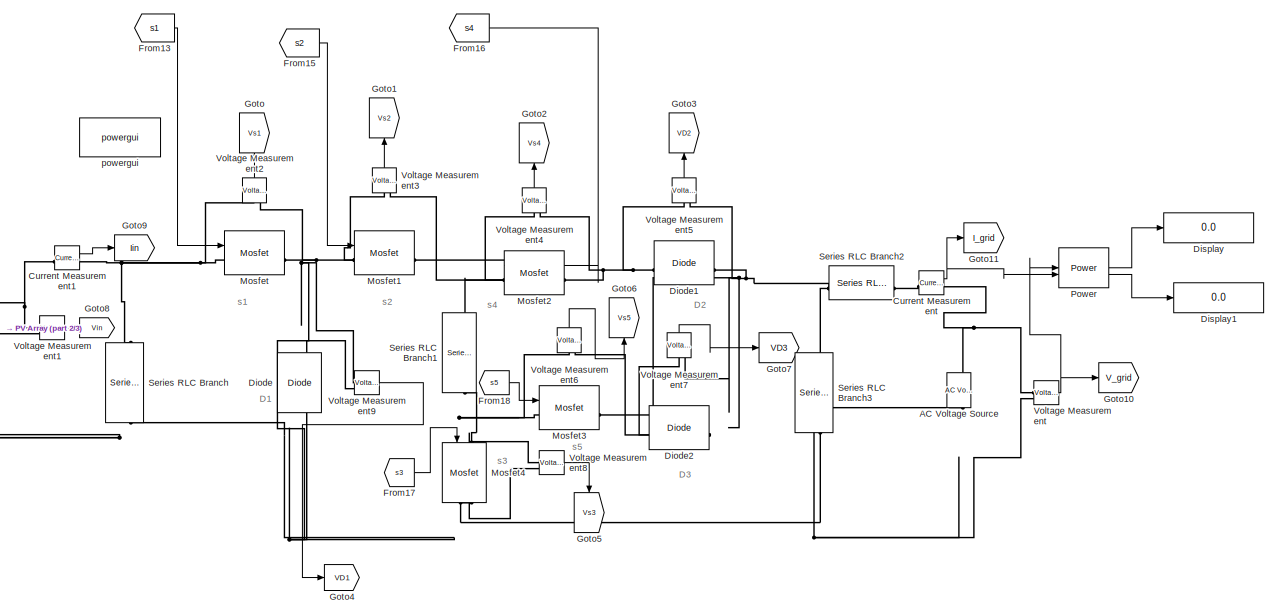
[diagram: root canvas - part 1/3, top center region]
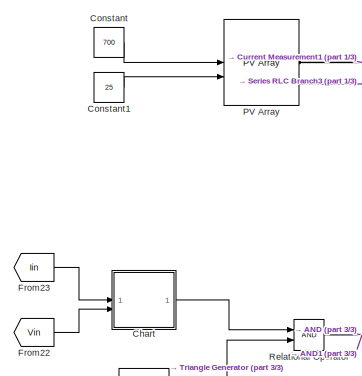
[diagram: root canvas - part 2/3, middle left region]
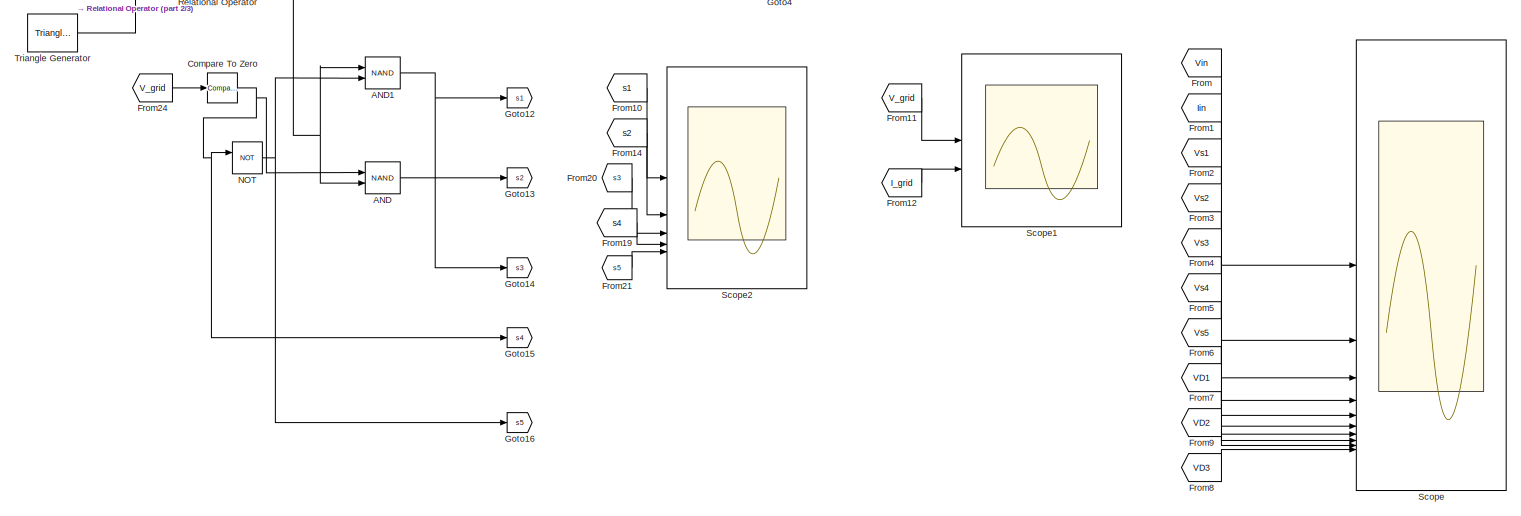
[diagram: root canvas - part 3/3, full width, bottom band]
MODEL slx_df8b6bdd78d4
KIND model
CONFIG AbsTol = auto
CONFIG EnableMultiTasking = off
CONFIG FixedStep = auto
CONFIG MaxStep = auto
CONFIG MinStep = auto
CONFIG RelTol = 1e-3
CONFIG SampleTimeConstraint = Unconstrained
CONFIG SolverName = VariableStepAuto
CONFIG StartTime = 0.0
CONFIG StopTime = 1
BLOCK [Reference] AC Voltage Source  REF=spsACVoltageSourceLib/AC Voltage Source
  LibrarySourceBlock = sps_lib/Sources/AC Voltage Source
  SourceBlock = spsACVoltageSourceLib/AC Voltage Source
  SourceType = AC Voltage Source
BLOCK [Logic] AND
  AllPortsSameDT = off
  IconShape = distinctive
  Operator = NAND
  OutDataTypeStr = boolean
BLOCK [Logic] AND1
  AllPortsSameDT = off
  IconShape = distinctive
  Operator = NAND
  OutDataTypeStr = boolean
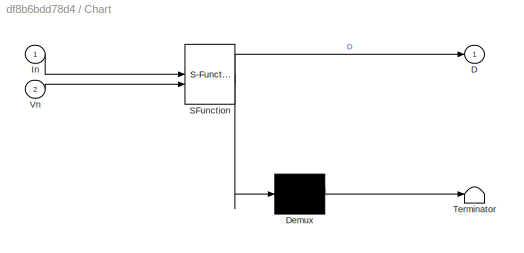
BLOCK [SubSystem] Chart
  ErrorFcn = Stateflow.Translate.translate
  PermitHierarchicalResolution = ExplicitOnly
  SFBlockType = Chart
  TreatAsAtomicUnit = on
BLOCK [Demux] Chart/ Demux 
  Outputs = 1
BLOCK [S-Function] Chart/ SFunction 
  EnableBusSupport = on
  FunctionName = sf_sfun
  PortCounts = [2 2]
  SFcnIsStateOwnerBlock = off
  SFunctionDeploymentMode = off
  Tag = Stateflow S-Function 3
BLOCK [Terminator] Chart/ Terminator 
BLOCK [Outport] Chart/D
BLOCK [Inport] Chart/In
BLOCK [Inport] Chart/Vn
  Port = 2
BLOCK [Reference] Compare To Zero  REF=simulink/Logic and Bit
Operations/Compare
To Zero
  NameLocation = left
  SourceBlock = simulink/Logic and Bit\nOperations/Compare\nTo Zero
  SourceType = Compare To Zero
BLOCK [Constant] Constant
  Value = 700
BLOCK [Constant] Constant1
  Value = 25
BLOCK [Reference] Current Measurement  REF=spsCurrentMeasurementLib/Current Measurement
  LibrarySourceBlock = sps_lib/Sensors and Measurements/Current Measurement
  SourceBlock = spsCurrentMeasurementLib/Current Measurement
  SourceType = Current Measurement
  UserDataPersistent = on
BLOCK [Reference] Current Measurement1  REF=spsCurrentMeasurementLib/Current Measurement
  LibrarySourceBlock = sps_lib/Sensors and Measurements/Current Measurement
  SourceBlock = spsCurrentMeasurementLib/Current Measurement
  SourceType = Current Measurement
  UserDataPersistent = on
BLOCK [Reference] Diode  REF=spsDiodeLib/Diode
  LibrarySourceBlock = sps_lib/Power Electronics/Diode
  NameLocation = left
  SourceBlock = spsDiodeLib/Diode
  SourceType = Diode
BLOCK [Reference] Diode1  REF=spsDiodeLib/Diode
  LibrarySourceBlock = sps_lib/Power Electronics/Diode
  SourceBlock = spsDiodeLib/Diode
  SourceType = Diode
BLOCK [Reference] Diode2  REF=spsDiodeLib/Diode
  LibrarySourceBlock = sps_lib/Power Electronics/Diode
  NameLocation = top
  SourceBlock = spsDiodeLib/Diode
  SourceType = Diode
BLOCK [Display] Display
  Decimation = 1
BLOCK [Display] Display1
  Decimation = 1
BLOCK [From] From
  GotoTag = Vin
BLOCK [From] From1
  GotoTag = Iin
  TagVisibility = global
BLOCK [From] From10
  GotoTag = s1
BLOCK [From] From11
  GotoTag = V_grid
BLOCK [From] From12
  GotoTag = I_grid
BLOCK [From] From13
  GotoTag = s1
BLOCK [From] From14
  GotoTag = s2
BLOCK [From] From15
  GotoTag = s2
BLOCK [From] From16
  GotoTag = s4
BLOCK [From] From17
  GotoTag = s3
BLOCK [From] From18
  GotoTag = s5
BLOCK [From] From19
  GotoTag = s4
BLOCK [From] From2
  GotoTag = Vs1
BLOCK [From] From20
  GotoTag = s3
BLOCK [From] From21
  GotoTag = s5
BLOCK [From] From22
  GotoTag = Vin
BLOCK [From] From23
  GotoTag = Iin
  TagVisibility = global
BLOCK [From] From24
  GotoTag = V_grid
BLOCK [From] From3
  GotoTag = Vs2
BLOCK [From] From4
  GotoTag = Vs3
BLOCK [From] From5
  GotoTag = Vs4
BLOCK [From] From6
  GotoTag = Vs5
BLOCK [From] From7
  GotoTag = VD1
BLOCK [From] From8
  GotoTag = VD3
BLOCK [From] From9
  GotoTag = VD2
BLOCK [Goto] Goto
  GotoTag = Vs1
  NameLocation = right
BLOCK [Goto] Goto1
  GotoTag = Vs2
  NameLocation = right
BLOCK [Goto] Goto10
  GotoTag = V_grid
BLOCK [Goto] Goto11
  GotoTag = I_grid
BLOCK [Goto] Goto12
  GotoTag = s1
BLOCK [Goto] Goto13
  GotoTag = s2
BLOCK [Goto] Goto14
  GotoTag = s3
BLOCK [Goto] Goto15
  GotoTag = s4
BLOCK [Goto] Goto16
  GotoTag = s5
BLOCK [Goto] Goto2
  GotoTag = Vs4
  NameLocation = right
BLOCK [Goto] Goto3
  GotoTag = VD2
  NameLocation = right
BLOCK [Goto] Goto4
  GotoTag = VD1
BLOCK [Goto] Goto5
  GotoTag = Vs3
  NameLocation = left
BLOCK [Goto] Goto6
  GotoTag = Vs5
  NameLocation = right
BLOCK [Goto] Goto7
  GotoTag = VD3
BLOCK [Goto] Goto8
  GotoTag = Vin
BLOCK [Goto] Goto9
  GotoTag = Iin
  TagVisibility = global
BLOCK [Reference] Mosfet  REF=spsMosfetLib/Mosfet
  LibrarySourceBlock = sps_lib/Power Electronics/Mosfet
  SourceBlock = spsMosfetLib/Mosfet
  SourceType = Mosfet
BLOCK [Reference] Mosfet1  REF=spsMosfetLib/Mosfet
  LibrarySourceBlock = sps_lib/Power Electronics/Mosfet
  SourceBlock = spsMosfetLib/Mosfet
  SourceType = Mosfet
BLOCK [Reference] Mosfet2  REF=spsMosfetLib/Mosfet
  LibrarySourceBlock = sps_lib/Power Electronics/Mosfet
  NameLocation = top
  SourceBlock = spsMosfetLib/Mosfet
  SourceType = Mosfet
BLOCK [Reference] Mosfet3  REF=spsMosfetLib/Mosfet
  LibrarySourceBlock = sps_lib/Power Electronics/Mosfet
  SourceBlock = spsMosfetLib/Mosfet
  SourceType = Mosfet
BLOCK [Reference] Mosfet4  REF=spsMosfetLib/Mosfet
  LibrarySourceBlock = sps_lib/Power Electronics/Mosfet
  NameLocation = left
  SourceBlock = spsMosfetLib/Mosfet
  SourceType = Mosfet
BLOCK [Logic] NOT
  AllPortsSameDT = off
  IconShape = distinctive
  Operator = NOT
  OutDataTypeStr = boolean
BLOCK [Reference] PV Array  REF=spsPVArrayLib/PV Array
  LibrarySourceBlock = sps_lib/Sources/PV Array
  SourceBlock = spsPVArrayLib/PV Array
  SourceType = PV array
BLOCK [Reference] Power  REF=spsPowerLib/Power
  LibrarySourceBlock = sps_lib/Sensors and Measurements/Power
  SourceBlock = spsPowerLib/Power
  SourceType = Power
BLOCK [RelationalOperator] Relational Operator
  InputSameDT = off
  OutDataTypeStr = boolean
  RndMeth = Simplest
BLOCK [Scope] Scope
  Floating = off
  NumInputPorts = 10
  ScopeSpecificationString = Simulink.scopes.TimeScopeBlockCfg('CurrentConfiguration', extmgr.ConfigurationSet(extmgr.Configuration('Core','General UI',true),extmgr.Configuration('Core','Source UI',true),extmgr.Configuration('Sources','WiredSimulink',true),extmgr.Configuration('Visuals','Time Domain',true,'SerializedDisplays',{struct('MinYLimReal','-19.06134','MaxYLimReal','247.46206','YLabelReal','','MinYLimMag','0.00000','M...<+10330ch>
BLOCK [Scope] Scope1
  Floating = off
  NumInputPorts = 2
  ScopeSpecificationString = Simulink.scopes.TimeScopeBlockCfg('CurrentConfiguration', extmgr.ConfigurationSet(extmgr.Configuration('Core','General UI',true),extmgr.Configuration('Core','Source UI',true),extmgr.Configuration('Sources','WiredSimulink',true,'DataLoggingVariableName','ScopeData1'),extmgr.Configuration('Visuals','Time Domain',true,'SerializedDisplays',{struct('MinYLimReal','-388.75','MaxYLimReal','388.75','YLabel...<+2195ch>
BLOCK [Scope] Scope2
  Floating = off
  NumInputPorts = 5
  ScopeSpecificationString = Simulink.scopes.TimeScopeBlockCfg('CurrentConfiguration', extmgr.ConfigurationSet(extmgr.Configuration('Core','General UI',true),extmgr.Configuration('Core','Source UI',true),extmgr.Configuration('Sources','WiredSimulink',true,'DataLoggingVariableName','ScopeData2'),extmgr.Configuration('Visuals','Time Domain',true,'SerializedDisplays',{struct('MinYLimReal','-0.125','MaxYLimReal','1.125','YLabelRe...<+5423ch>
BLOCK [Reference] Series RLC Branch  REF=spsSeriesRLCBranchLib/Series RLC Branch
  LibrarySourceBlock = sps_lib/Passives/Series RLC Branch
  NameLocation = left
  SourceBlock = spsSeriesRLCBranchLib/Series RLC Branch
  SourceType = Series RLC Branch
BLOCK [Reference] Series RLC Branch1  REF=spsSeriesRLCBranchLib/Series RLC Branch
  LibrarySourceBlock = sps_lib/Passives/Series RLC Branch
  NameLocation = left
  SourceBlock = spsSeriesRLCBranchLib/Series RLC Branch
  SourceType = Series RLC Branch
BLOCK [Reference] Series RLC Branch2  REF=spsSeriesRLCBranchLib/Series RLC Branch
  LibrarySourceBlock = sps_lib/Passives/Series RLC Branch
  NameLocation = top
  SourceBlock = spsSeriesRLCBranchLib/Series RLC Branch
  SourceType = Series RLC Branch
BLOCK [Reference] Series RLC Branch3  REF=spsSeriesRLCBranchLib/Series RLC Branch
  LibrarySourceBlock = sps_lib/Passives/Series RLC Branch
  NameLocation = left
  SourceBlock = spsSeriesRLCBranchLib/Series RLC Branch
  SourceType = Series RLC Branch
BLOCK [Reference] Triangle Generator  REF=spsTriangleGeneratorLib/Triangle
Generator
  LibrarySourceBlock = sps_lib/Sources/Signal Generator Sources/Triangle\nGenerator
  SourceBlock = spsTriangleGeneratorLib/Triangle\nGenerator
  SourceType = Triangle Generator
BLOCK [Reference] Voltage Measurement  REF=spsVoltageMeasurementLib/Voltage Measurement
  LibrarySourceBlock = sps_lib/Sensors and Measurements/Voltage Measurement
  SourceBlock = spsVoltageMeasurementLib/Voltage Measurement
  SourceType = Voltage Measurement
  UserDataPersistent = on
BLOCK [Reference] Voltage Measurement1  REF=spsVoltageMeasurementLib/Voltage Measurement
  LibrarySourceBlock = sps_lib/Sensors and Measurements/Voltage Measurement
  SourceBlock = spsVoltageMeasurementLib/Voltage Measurement
  SourceType = Voltage Measurement
  UserDataPersistent = on
BLOCK [Reference] Voltage Measurement2  REF=spsVoltageMeasurementLib/Voltage Measurement
  LibrarySourceBlock = sps_lib/Sensors and Measurements/Voltage Measurement
  NameLocation = right
  SourceBlock = spsVoltageMeasurementLib/Voltage Measurement
  SourceType = Voltage Measurement
  UserDataPersistent = on
BLOCK [Reference] Voltage Measurement3  REF=spsVoltageMeasurementLib/Voltage Measurement
  LibrarySourceBlock = sps_lib/Sensors and Measurements/Voltage Measurement
  NameLocation = right
  SourceBlock = spsVoltageMeasurementLib/Voltage Measurement
  SourceType = Voltage Measurement
  UserDataPersistent = on
BLOCK [Reference] Voltage Measurement4  REF=spsVoltageMeasurementLib/Voltage Measurement
  LibrarySourceBlock = sps_lib/Sensors and Measurements/Voltage Measurement
  NameLocation = right
  SourceBlock = spsVoltageMeasurementLib/Voltage Measurement
  SourceType = Voltage Measurement
  UserDataPersistent = on
BLOCK [Reference] Voltage Measurement5  REF=spsVoltageMeasurementLib/Voltage Measurement
  LibrarySourceBlock = sps_lib/Sensors and Measurements/Voltage Measurement
  NameLocation = right
  SourceBlock = spsVoltageMeasurementLib/Voltage Measurement
  SourceType = Voltage Measurement
  UserDataPersistent = on
BLOCK [Reference] Voltage Measurement6  REF=spsVoltageMeasurementLib/Voltage Measurement
  LibrarySourceBlock = sps_lib/Sensors and Measurements/Voltage Measurement
  NameLocation = right
  SourceBlock = spsVoltageMeasurementLib/Voltage Measurement
  SourceType = Voltage Measurement
  UserDataPersistent = on
BLOCK [Reference] Voltage Measurement7  REF=spsVoltageMeasurementLib/Voltage Measurement
  LibrarySourceBlock = sps_lib/Sensors and Measurements/Voltage Measurement
  NameLocation = right
  SourceBlock = spsVoltageMeasurementLib/Voltage Measurement
  SourceType = Voltage Measurement
  UserDataPersistent = on
BLOCK [Reference] Voltage Measurement8  REF=spsVoltageMeasurementLib/Voltage Measurement
  LibrarySourceBlock = sps_lib/Sensors and Measurements/Voltage Measurement
  SourceBlock = spsVoltageMeasurementLib/Voltage Measurement
  SourceType = Voltage Measurement
  UserDataPersistent = on
BLOCK [Reference] Voltage Measurement9  REF=spsVoltageMeasurementLib/Voltage Measurement
  LibrarySourceBlock = sps_lib/Sensors and Measurements/Voltage Measurement
  SourceBlock = spsVoltageMeasurementLib/Voltage Measurement
  SourceType = Voltage Measurement
  UserDataPersistent = on
BLOCK [Reference] powergui  REF=sps_lib/powergui
  LibrarySourceBlock = sps_lib/powergui
  Priority = 1
  SourceBlock = sps_lib/powergui
  SourceType = PSB option menu block
ANNOTATION (root): D1
ANNOTATION (root): D2
ANNOTATION (root): D3
ANNOTATION (root): s1
ANNOTATION (root): s2
ANNOTATION (root): s3
ANNOTATION (root): s4
ANNOTATION (root): s5
NET AND1:1 -> Goto12:1, Goto14:1
LINE AND:1 -> Goto13:1
LINE Chart:1 -> Relational Operator:1
NET Compare To Zero:1 -> AND:1, Goto15:1, NOT:1
LINE Constant1:1 -> PV Array:2
LINE Constant:1 -> PV Array:1
LINE Current Measurement1:1 -> Goto9:1
NET Current Measurement:1 -> Goto11:1, Power:2
LINE From10:1 -> Scope2:1
LINE From11:1 -> Scope1:1
LINE From12:1 -> Scope1:2
LINE From13:1 -> Mosfet:1
LINE From14:1 -> Scope2:2
LINE From15:1 -> Mosfet1:1
LINE From16:1 -> Mosfet2:1
LINE From17:1 -> Mosfet4:1
LINE From18:1 -> Mosfet3:1
LINE From19:1 -> Scope2:4
LINE From1:1 -> Scope:2
LINE From20:1 -> Scope2:3
LINE From21:1 -> Scope2:5
LINE From22:1 -> Chart:2
LINE From23:1 -> Chart:1
LINE From24:1 -> Compare To Zero:1
LINE From2:1 -> Scope:3
LINE From3:1 -> Scope:4
LINE From4:1 -> Scope:5
LINE From5:1 -> Scope:6
LINE From6:1 -> Scope:7
LINE From7:1 -> Scope:8
LINE From8:1 -> Scope:10
LINE From9:1 -> Scope:9
LINE From:1 -> Scope:1
NET NOT:1 -> AND1:2, Goto16:1
LINE Power:1 -> Display:1
LINE Power:2 -> Display1:1
NET Relational Operator:1 -> AND1:1, AND:2
LINE Triangle Generator:1 -> Relational Operator:2
LINE Voltage Measurement1:1 -> Goto8:1
LINE Voltage Measurement2:1 -> Goto:1
LINE Voltage Measurement3:1 -> Goto1:1
LINE Voltage Measurement4:1 -> Goto2:1
LINE Voltage Measurement5:1 -> Goto3:1
LINE Voltage Measurement6:1 -> Goto6:1
LINE Voltage Measurement7:1 -> Goto7:1
LINE Voltage Measurement8:1 -> Goto5:1
LINE Voltage Measurement9:1 -> Goto4:1
NET Voltage Measurement:1 -> Goto10:1, Power:1
PNET net1: AC Voltage Source:LConn1 -- Diode:RConn1 -- Mosfet4:RConn1 -- PV Array:RConn2 -- Series RLC Branch3:RConn1 -- Series RLC Branch:RConn1 -- Voltage Measurement1:LConn2 -- Voltage Measurement8:LConn2 -- Voltage Measurement9:LConn2 -- Voltage Measurement:LConn2
PNET net2: AC Voltage Source:RConn1 -- Current Measurement:RConn1 -- Voltage Measurement:LConn1
PNET net3: Current Measurement1:LConn1 -- PV Array:RConn1 -- Voltage Measurement1:LConn1
PNET net4: Current Measurement1:RConn1 -- Mosfet:LConn1 -- Series RLC Branch:LConn1 -- Voltage Measurement2:LConn1
PLINE Current Measurement:LConn1 -- Series RLC Branch2:LConn1
PNET net5: Diode1:LConn1 -- Mosfet2:LConn1 -- Voltage Measurement4:LConn2 -- Voltage Measurement5:LConn1
PNET net6: Diode1:RConn1 -- Diode2:LConn1 -- Series RLC Branch2:RConn1 -- Series RLC Branch3:LConn1 -- Voltage Measurement5:LConn2 -- Voltage Measurement7:LConn2
PNET net7: Diode2:RConn1 -- Mosfet3:RConn1 -- Voltage Measurement6:LConn2 -- Voltage Measurement7:LConn1
PNET net8: Diode:LConn1 -- Mosfet1:LConn1 -- Mosfet:RConn1 -- Voltage Measurement2:LConn2 -- Voltage Measurement3:LConn1 -- Voltage Measurement9:LConn1
PNET net9: Mosfet1:RConn1 -- Mosfet2:RConn1 -- Series RLC Branch1:LConn1 -- Voltage Measurement3:LConn2 -- Voltage Measurement4:LConn1
PNET net10: Mosfet3:LConn1 -- Mosfet4:LConn1 -- Series RLC Branch1:RConn1 -- Voltage Measurement6:LConn1 -- Voltage Measurement8:LConn1
note: NET lines group one-source signal fan-out (src -> all destinations, sorted); 1:1 wires keep LINE; PNET lines group multi-terminal physical nets as a canonical sorted terminal list (undirected conserving connections); 2-terminal nets keep the pairwise PLINE form
CHART Chart states=11 transitions=16
  STATE_LABEL 'Sense \nVn,In'
  STATE_LABEL 'calculate\ndI=In-Ip\ndV=Vn-Vp'
  STATE_LABEL 'J_CheckCurrent\n'
  STATE_LABEL 'J_CheckSlope\nslope_check = In + (dI/dV)*Vn'
  STATE_LABEL 'No_change\n'
  STATE_LABEL 'No_change1'
  STATE_LABEL 'Increase_D1'
  STATE_LABEL 'Decrease_D'
  STATE_LABEL 'Increase_D'
  STATE_LABEL 'Decrease_D1'
  STATE_LABEL 'Return\nVp = Vn; Ip = In'
CHART  states=0 transitions=0
